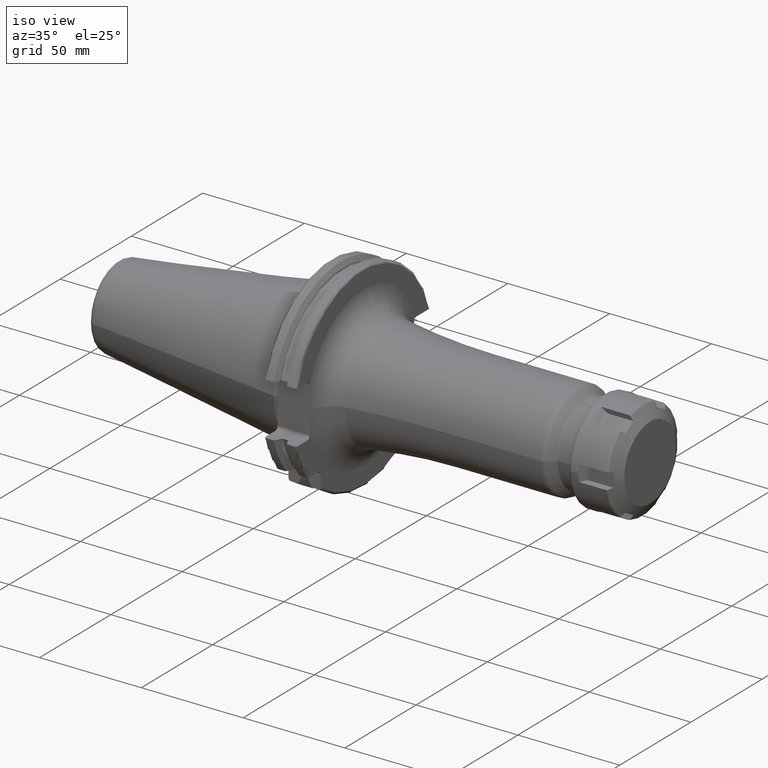
[diagram: clean part render]
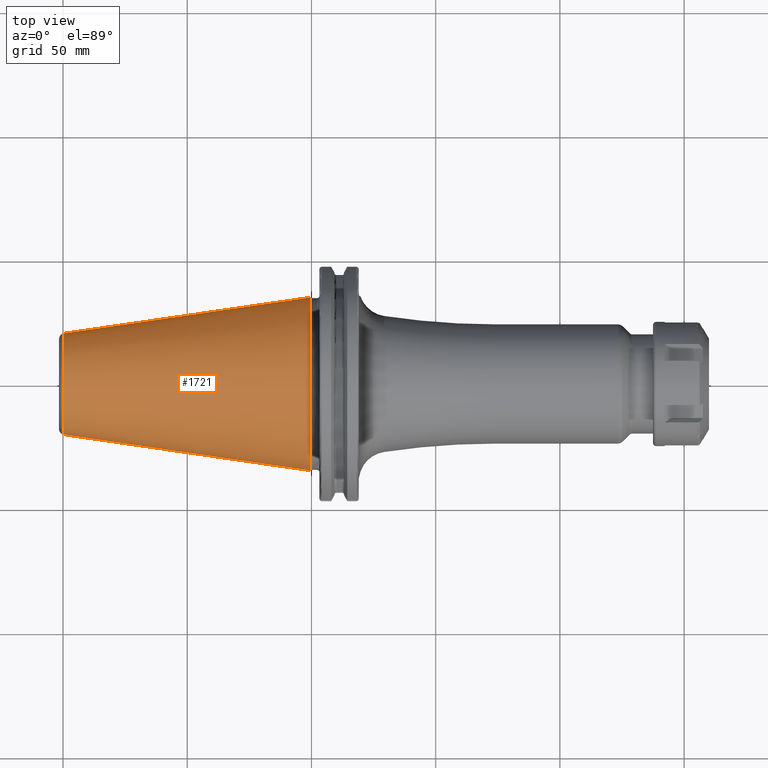
[diagram: tour spotlight — one face highlighted and labeled with its STEP entity id]
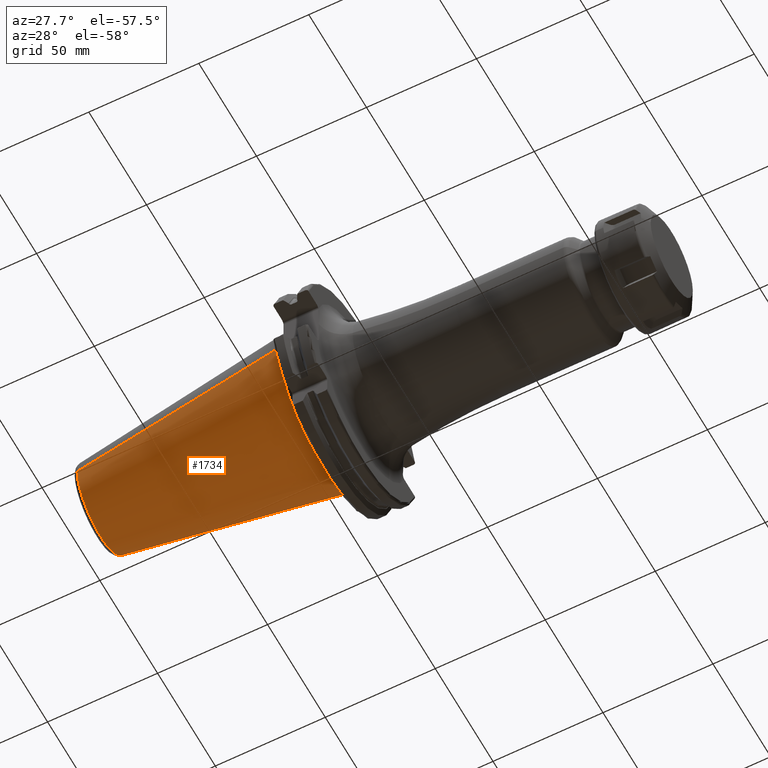
[diagram: tour spotlight — one face highlighted and labeled with its STEP entity id]
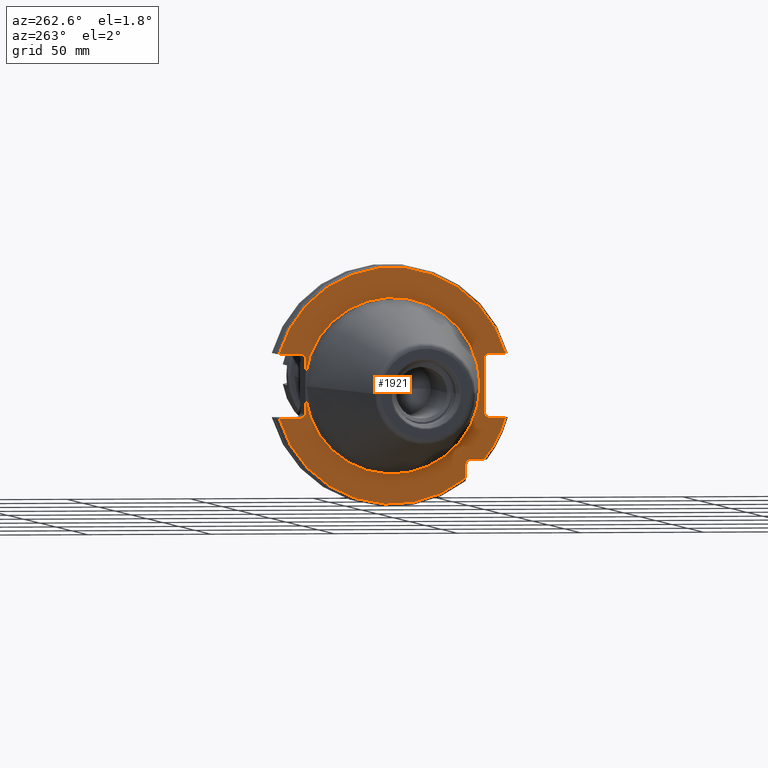
[diagram: tour spotlight — one face highlighted and labeled with its STEP entity id]
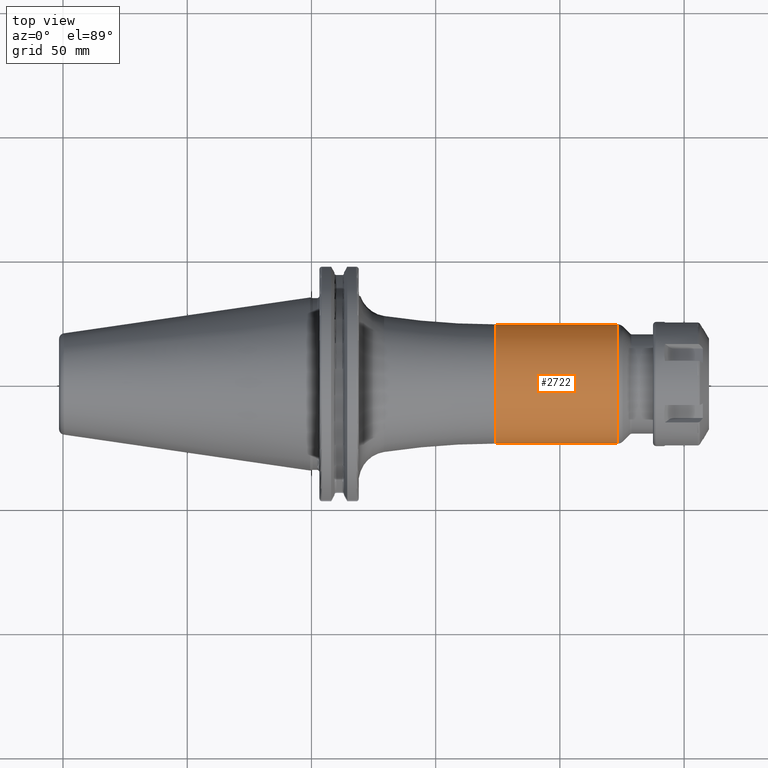
[diagram: tour spotlight — one face highlighted and labeled with its STEP entity id]
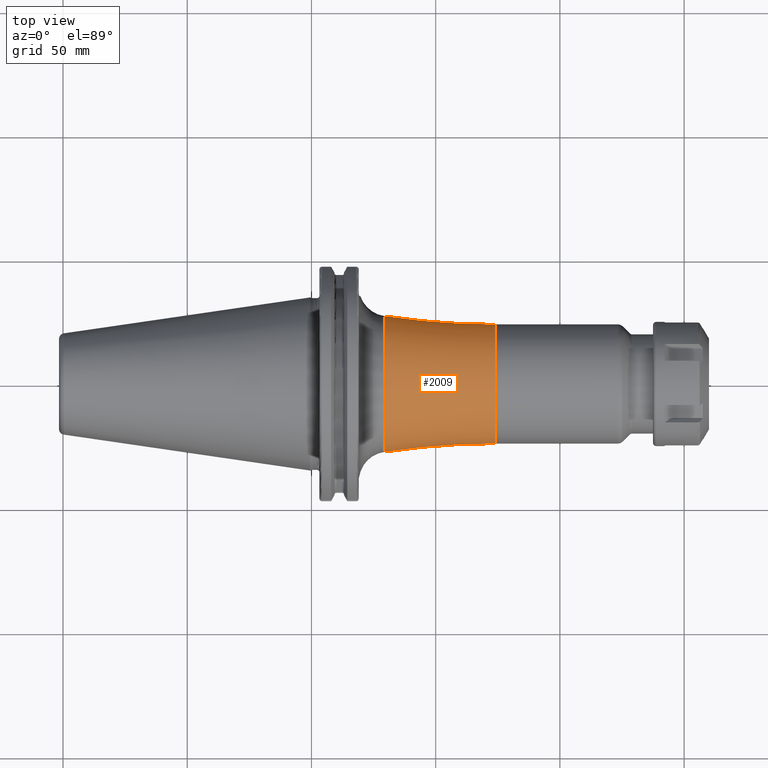
[diagram: tour spotlight — one face highlighted and labeled with its STEP entity id]
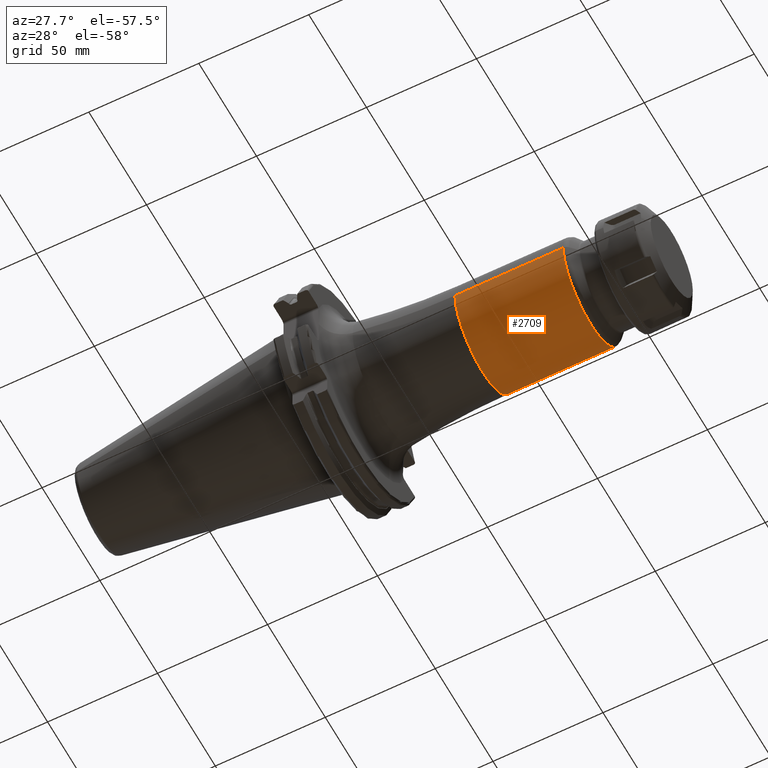
[diagram: tour spotlight — one face highlighted and labeled with its STEP entity id]
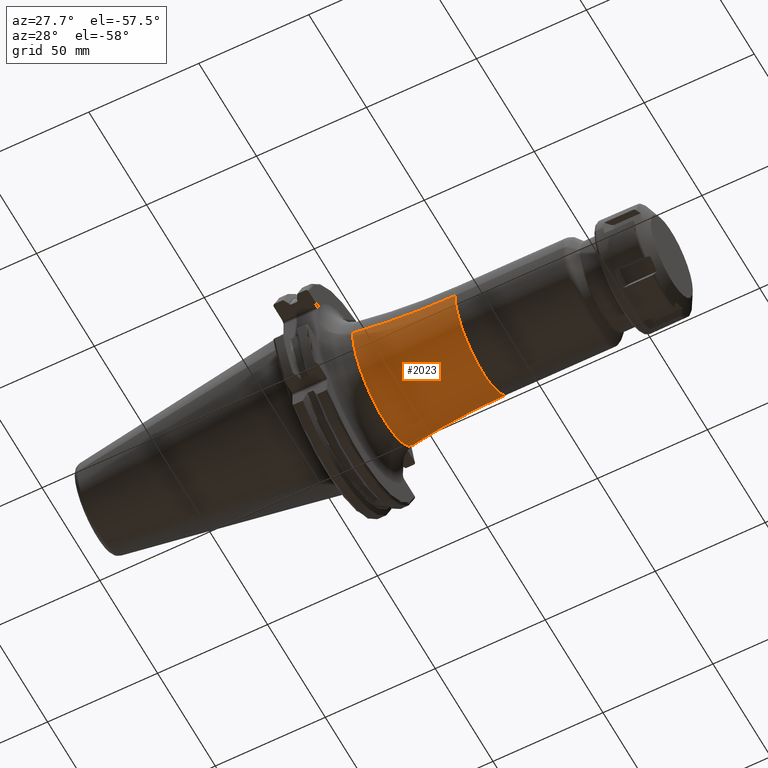
[diagram: tour spotlight — one face highlighted and labeled with its STEP entity id]
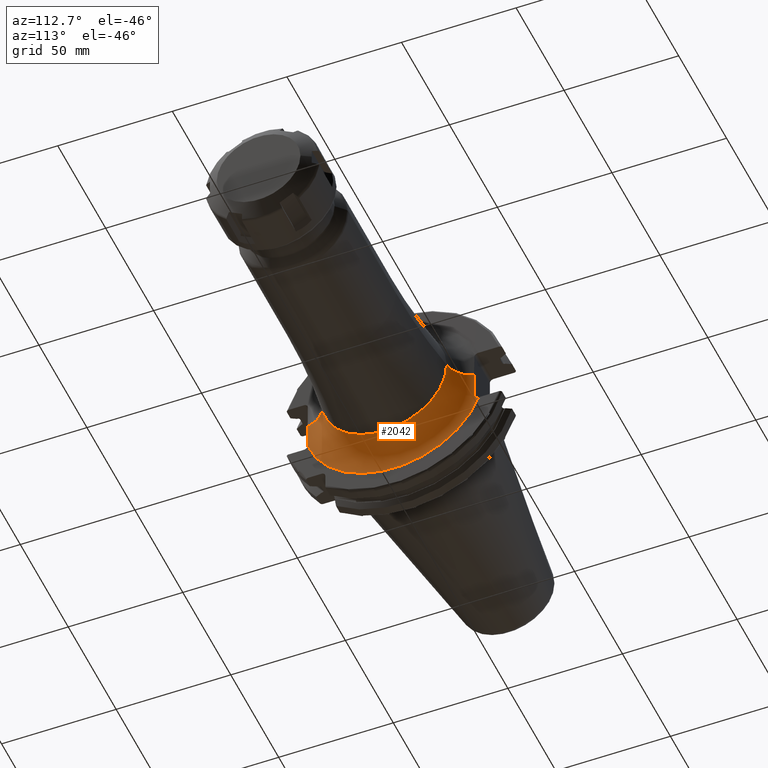
[diagram: tour spotlight — one face highlighted and labeled with its STEP entity id]
A machine part: a face-by-face anatomy tour. The part has 150 B-rep faces; the first image is the clean iso view, then the 8 largest visible faces are spotlighted one at a time (largest first), each with its STEP entity span.

Face 1 — top view, entity #1721. In plain terms, the highlighted conical surface has half-angle 8.298 deg.
Definition (entity closure, byte-faithful):
#37=CARTESIAN_POINT('',(-9.967471700563E1,0.E0,0.E0));
#38=DIRECTION('',(1.E0,0.E0,0.E0));
#39=DIRECTION('',(0.E0,1.E0,0.E0));
#40=AXIS2_PLACEMENT_3D('',#37,#38,#39);
#42=CARTESIAN_POINT('',(-4.896823332305E-1,0.E0,0.E0));
#43=DIRECTION('',(1.E0,0.E0,0.E0));
#44=DIRECTION('',(0.E0,1.E0,0.E0));
#45=AXIS2_PLACEMENT_3D('',#42,#43,#44);
#47=DIRECTION('',(-9.895312636440E-1,-1.443186691705E-1,0.E0));
#48=VECTOR('',#47,1.002343617797E2);
#49=CARTESIAN_POINT('',(-4.896823332305E-1,3.485358204157E1,0.E0));
#50=LINE('',#49,#48);
#51=DIRECTION('',(-9.895312636440E-1,1.443186691705E-1,0.E0));
#52=VECTOR('',#51,1.002343617797E2);
#53=CARTESIAN_POINT('',(-4.896823332305E-1,-3.485358204157E1,0.E0));
#54=LINE('',#53,#52);
#1388=CARTESIAN_POINT('',(-9.967471700563E1,2.038789234437E1,0.E0));
#1390=VERTEX_POINT('',#1388);
#1392=CARTESIAN_POINT('',(-9.967471700563E1,-2.038789234437E1,0.E0));
#1394=VERTEX_POINT('',#1392);
#1456=CARTESIAN_POINT('',(-4.896823332305E-1,3.485358204157E1,0.E0));
#1457=VERTEX_POINT('',#1456);
#1458=CARTESIAN_POINT('',(-4.896823332305E-1,-3.485358204157E1,0.E0));
#1459=VERTEX_POINT('',#1458);
#1707=CARTESIAN_POINT('',(-5.008219966943E1,0.E0,0.E0));
#1708=DIRECTION('',(1.E0,0.E0,0.E0));
#1709=DIRECTION('',(0.E0,-1.E0,0.E0));
#1710=AXIS2_PLACEMENT_3D('',#1707,#1708,#1709);
#1711=CONICAL_SURFACE('',#1710,2.762073719297E1,8.297826828206E0);
#1713=ORIENTED_EDGE('',*,*,#1712,.F.);
#1715=ORIENTED_EDGE('',*,*,#1714,.T.);
#1717=ORIENTED_EDGE('',*,*,#1716,.T.);
#1718=ORIENTED_EDGE('',*,*,#1700,.F.);
#1719=EDGE_LOOP('',(#1713,#1715,#1717,#1718));
#1720=FACE_OUTER_BOUND('',#1719,.F.);
#1721=ADVANCED_FACE('',(#1720),#1711,.T.);
#41=CIRCLE('',#40,2.038789234437E1);
#46=CIRCLE('',#45,3.485358204157E1);
#1700=EDGE_CURVE('',#1390,#1394,#41,.T.);
#1712=EDGE_CURVE('',#1457,#1390,#50,.T.);
#1714=EDGE_CURVE('',#1457,#1459,#46,.T.);
#1716=EDGE_CURVE('',#1459,#1394,#54,.T.);

Face 2 — auxiliary view, entity #1734. In plain terms, the highlighted conical surface has half-angle 8.298 deg.
Definition (entity closure, byte-faithful):
#32=CARTESIAN_POINT('',(-9.967471700563E1,0.E0,0.E0));
#33=DIRECTION('',(-1.E0,0.E0,0.E0));
#34=DIRECTION('',(0.E0,1.E0,0.E0));
#35=AXIS2_PLACEMENT_3D('',#32,#33,#34);
#47=DIRECTION('',(-9.895312636440E-1,-1.443186691705E-1,0.E0));
#48=VECTOR('',#47,1.002343617797E2);
#49=CARTESIAN_POINT('',(-4.896823332305E-1,3.485358204157E1,0.E0));
#50=LINE('',#49,#48);
#51=DIRECTION('',(-9.895312636440E-1,1.443186691705E-1,0.E0));
#52=VECTOR('',#51,1.002343617797E2);
#53=CARTESIAN_POINT('',(-4.896823332305E-1,-3.485358204157E1,0.E0));
#54=LINE('',#53,#52);
#55=CARTESIAN_POINT('',(-4.896823332305E-1,0.E0,0.E0));
#56=DIRECTION('',(-1.E0,0.E0,0.E0));
#57=DIRECTION('',(0.E0,1.E0,0.E0));
#58=AXIS2_PLACEMENT_3D('',#55,#56,#57);
#1388=CARTESIAN_POINT('',(-9.967471700563E1,2.038789234437E1,0.E0));
#1390=VERTEX_POINT('',#1388);
#1392=CARTESIAN_POINT('',(-9.967471700563E1,-2.038789234437E1,0.E0));
#1394=VERTEX_POINT('',#1392);
#1456=CARTESIAN_POINT('',(-4.896823332305E-1,3.485358204157E1,0.E0));
#1457=VERTEX_POINT('',#1456);
#1458=CARTESIAN_POINT('',(-4.896823332305E-1,-3.485358204157E1,0.E0));
#1459=VERTEX_POINT('',#1458);
#1722=CARTESIAN_POINT('',(-5.008219966943E1,0.E0,0.E0));
#1723=DIRECTION('',(1.E0,0.E0,0.E0));
#1724=DIRECTION('',(0.E0,-1.E0,0.E0));
#1725=AXIS2_PLACEMENT_3D('',#1722,#1723,#1724);
#1726=CONICAL_SURFACE('',#1725,2.762073719297E1,8.297826828206E0);
#1727=ORIENTED_EDGE('',*,*,#1712,.T.);
#1728=ORIENTED_EDGE('',*,*,#1689,.T.);
#1729=ORIENTED_EDGE('',*,*,#1716,.F.);
#1731=ORIENTED_EDGE('',*,*,#1730,.F.);
#1732=EDGE_LOOP('',(#1727,#1728,#1729,#1731));
#1733=FACE_OUTER_BOUND('',#1732,.F.);
#1734=ADVANCED_FACE('',(#1733),#1726,.T.);
#36=CIRCLE('',#35,2.038789234437E1);
#59=CIRCLE('',#58,3.485358204157E1);
#1689=EDGE_CURVE('',#1390,#1394,#36,.T.);
#1712=EDGE_CURVE('',#1457,#1390,#50,.T.);
#1716=EDGE_CURVE('',#1459,#1394,#54,.T.);
#1730=EDGE_CURVE('',#1457,#1459,#59,.T.);

Face 3 — auxiliary view, entity #1921. In plain terms, the highlighted planar face has unit normal (1, 0, 0).
Definition (entity closure, byte-faithful):
#105=CARTESIAN_POINT('',(3.2E0,3.53E1,-4.414818795828E0));
#117=CARTESIAN_POINT('',(3.2E0,0.E0,0.E0));
#118=DIRECTION('',(-1.E0,0.E0,0.E0));
#119=DIRECTION('',(0.E0,9.922698524245E-1,-1.240989120402E-1));
#120=AXIS2_PLACEMENT_3D('',#117,#118,#119);
#126=CARTESIAN_POINT('',(3.2E0,3.705E1,-1.115E1));
#127=DIRECTION('',(1.E0,0.E0,0.E0));
#128=DIRECTION('',(0.E0,-1.E0,0.E0));
#129=AXIS2_PLACEMENT_3D('',#126,#127,#128);
#135=DIRECTION('',(0.E0,1.E0,0.E0));
#136=VECTOR('',#135,6.711493733886E0);
#137=CARTESIAN_POINT('',(3.2E0,-4.596149373389E1,1.29E1));
#138=LINE('',#137,#136);
#139=DIRECTION('',(0.E0,0.E0,1.E0));
#140=VECTOR('',#139,2.23E1);
#141=CARTESIAN_POINT('',(3.2E0,-3.75E1,-1.115E1));
#142=LINE('',#141,#140);
#143=DIRECTION('',(0.E0,1.E0,0.E0));
#144=VECTOR('',#143,6.711493733886E0);
#145=CARTESIAN_POINT('',(3.2E0,-4.596149373389E1,-1.29E1));
#146=LINE('',#145,#144);
#147=CARTESIAN_POINT('',(3.2E0,0.E0,0.E0));
#148=DIRECTION('',(-1.E0,0.E0,0.E0));
#149=DIRECTION('',(0.E0,-7.803888060170E-1,-6.252945797329E-1));
#150=AXIS2_PLACEMENT_3D('',#147,#148,#149);
#152=DIRECTION('',(0.E0,-1.E0,0.E0));
#153=VECTOR('',#152,5.653810627237E0);
#154=CARTESIAN_POINT('',(3.2E0,-3.16E1,-2.985E1));
#155=LINE('',#154,#153);
#156=DIRECTION('',(0.E0,0.E0,1.E0));
#157=VECTOR('',#156,5.653810627237E0);
#158=CARTESIAN_POINT('',(3.2E0,-2.985E1,-3.725381062724E1));
#159=LINE('',#158,#157);
#160=CARTESIAN_POINT('',(3.2E0,0.E0,0.E0));
#161=DIRECTION('',(-1.E0,0.E0,0.E0));
#162=DIRECTION('',(0.E0,9.627964123359E-1,-2.702278083268E-1));
#163=AXIS2_PLACEMENT_3D('',#160,#161,#162);
#165=DIRECTION('',(0.E0,-1.E0,0.E0));
#166=VECTOR('',#165,8.911493733886E0);
#167=CARTESIAN_POINT('',(3.2E0,4.596149373389E1,-1.29E1));
#168=LINE('',#167,#166);
#169=DIRECTION('',(0.E0,0.E0,-1.E0));
#170=VECTOR('',#169,6.735181204172E0);
#171=CARTESIAN_POINT('',(3.2E0,3.53E1,-4.414818795828E0));
#172=LINE('',#171,#170);
#173=DIRECTION('',(0.E0,0.E0,-1.E0));
#174=VECTOR('',#173,6.735181204172E0);
#175=CARTESIAN_POINT('',(3.2E0,3.53E1,1.115E1));
#176=LINE('',#175,#174);
#177=DIRECTION('',(0.E0,-1.E0,0.E0));
#178=VECTOR('',#177,8.911493733886E0);
#179=CARTESIAN_POINT('',(3.2E0,4.596149373389E1,1.29E1));
#180=LINE('',#179,#178);
#181=CARTESIAN_POINT('',(3.2E0,0.E0,0.E0));
#182=DIRECTION('',(1.E0,0.E0,0.E0));
#183=DIRECTION('',(0.E0,9.627964123359E-1,2.702278083268E-1));
#184=AXIS2_PLACEMENT_3D('',#181,#182,#183);
#196=CARTESIAN_POINT('',(3.2E0,-3.925E1,1.115E1));
#197=DIRECTION('',(1.E0,0.E0,0.E0));
#198=DIRECTION('',(0.E0,1.E0,0.E0));
#199=AXIS2_PLACEMENT_3D('',#196,#197,#198);
#441=CARTESIAN_POINT('',(3.2E0,4.596149373389E1,-1.29E1));
#476=CARTESIAN_POINT('',(3.2E0,-4.596149373389E1,-1.29E1));
#483=CARTESIAN_POINT('',(3.2E0,-3.725381062724E1,-2.985E1));
#503=CARTESIAN_POINT('',(3.2E0,-3.16E1,-3.16E1));
#504=DIRECTION('',(1.E0,0.E0,0.E0));
#505=DIRECTION('',(0.E0,1.E0,0.E0));
#506=AXIS2_PLACEMENT_3D('',#503,#504,#505);
#587=CARTESIAN_POINT('',(3.2E0,3.705E1,1.115E1));
#588=DIRECTION('',(1.E0,0.E0,0.E0));
#589=DIRECTION('',(0.E0,0.E0,1.E0));
#590=AXIS2_PLACEMENT_3D('',#587,#588,#589);
#673=CARTESIAN_POINT('',(3.2E0,4.596149373389E1,1.29E1));
#680=CARTESIAN_POINT('',(3.2E0,-4.596149373389E1,1.29E1));
#965=CARTESIAN_POINT('',(3.2E0,-3.925E1,-1.115E1));
#966=DIRECTION('',(1.E0,0.E0,0.E0));
#967=DIRECTION('',(0.E0,0.E0,-1.E0));
#968=AXIS2_PLACEMENT_3D('',#965,#966,#967);
#1166=CARTESIAN_POINT('',(3.2E0,3.53E1,4.414818795828E0));
#1177=CARTESIAN_POINT('',(3.2E0,0.E0,0.E0));
#1178=DIRECTION('',(1.E0,0.E0,0.E0));
#1179=DIRECTION('',(0.E0,9.922698524245E-1,1.240989120402E-1));
#1180=AXIS2_PLACEMENT_3D('',#1177,#1178,#1179);
#1400=CARTESIAN_POINT('',(3.2E0,-3.5575E1,0.E0));
#1402=VERTEX_POINT('',#1400);
#1526=VERTEX_POINT('',#1166);
#1528=VERTEX_POINT('',#105);
#1531=VERTEX_POINT('',#673);
#1532=VERTEX_POINT('',#680);
#1535=VERTEX_POINT('',#441);
#1536=VERTEX_POINT('',#476);
#1559=CARTESIAN_POINT('',(3.2E0,-2.985E1,-3.725381062724E1));
#1560=VERTEX_POINT('',#1559);
#1562=CARTESIAN_POINT('',(3.2E0,-3.925E1,-1.29E1));
#1564=VERTEX_POINT('',#1562);
#1566=CARTESIAN_POINT('',(3.2E0,-3.925E1,1.29E1));
#1568=VERTEX_POINT('',#1566);
#1569=CARTESIAN_POINT('',(3.2E0,3.705E1,1.29E1));
#1570=VERTEX_POINT('',#1569);
#1571=CARTESIAN_POINT('',(3.2E0,3.53E1,1.115E1));
#1572=VERTEX_POINT('',#1571);
#1573=CARTESIAN_POINT('',(3.2E0,3.53E1,-1.115E1));
#1574=VERTEX_POINT('',#1573);
#1575=CARTESIAN_POINT('',(3.2E0,3.705E1,-1.29E1));
#1576=VERTEX_POINT('',#1575);
#1577=CARTESIAN_POINT('',(3.2E0,-3.75E1,-1.115E1));
#1578=CARTESIAN_POINT('',(3.2E0,-3.75E1,1.115E1));
#1579=VERTEX_POINT('',#1577);
#1580=VERTEX_POINT('',#1578);
#1585=CARTESIAN_POINT('',(3.2E0,-2.985E1,-3.16E1));
#1586=CARTESIAN_POINT('',(3.2E0,-3.16E1,-2.985E1));
#1587=VERTEX_POINT('',#1585);
#1588=VERTEX_POINT('',#1586);
#1660=VERTEX_POINT('',#483);
#1881=CARTESIAN_POINT('',(3.2E0,0.E0,0.E0));
#1882=DIRECTION('',(1.E0,0.E0,0.E0));
#1883=DIRECTION('',(0.E0,-1.E0,0.E0));
#1884=AXIS2_PLACEMENT_3D('',#1881,#1882,#1883);
#1885=PLANE('',#1884);
#1887=ORIENTED_EDGE('',*,*,#1886,.T.);
#1889=ORIENTED_EDGE('',*,*,#1888,.F.);
#1891=ORIENTED_EDGE('',*,*,#1890,.F.);
#1893=ORIENTED_EDGE('',*,*,#1892,.F.);
#1895=ORIENTED_EDGE('',*,*,#1894,.F.);
#1897=ORIENTED_EDGE('',*,*,#1896,.F.);
#1899=ORIENTED_EDGE('',*,*,#1898,.F.);
#1901=ORIENTED_EDGE('',*,*,#1900,.F.);
#1903=ORIENTED_EDGE('',*,*,#1902,.F.);
#1905=ORIENTED_EDGE('',*,*,#1904,.F.);
#1906=ORIENTED_EDGE('',*,*,#1852,.T.);
#1907=ORIENTED_EDGE('',*,*,#1841,.F.);
#1908=ORIENTED_EDGE('',*,*,#1826,.F.);
#1909=ORIENTED_EDGE('',*,*,#1803,.T.);
#1911=ORIENTED_EDGE('',*,*,#1910,.F.);
#1912=ORIENTED_EDGE('',*,*,#1821,.F.);
#1914=ORIENTED_EDGE('',*,*,#1913,.F.);
#1916=ORIENTED_EDGE('',*,*,#1915,.F.);
#1918=ORIENTED_EDGE('',*,*,#1917,.T.);
#1919=EDGE_LOOP('',(#1887,#1889,#1891,#1893,#1895,#1897,#1899,#1901,#1903,#1905,
#1906,#1907,#1908,#1909,#1911,#1912,#1914,#1916,#1918));
#1920=FACE_OUTER_BOUND('',#1919,.F.);
#1921=ADVANCED_FACE('',(#1920),#1885,.F.);
#121=CIRCLE('',#120,3.5575E1);
#130=CIRCLE('',#129,1.75E0);
#151=CIRCLE('',#150,4.77375E1);
#164=CIRCLE('',#163,4.77375E1);
#185=CIRCLE('',#184,4.77375E1);
#200=CIRCLE('',#199,1.75E0);
#507=CIRCLE('',#506,1.75E0);
#591=CIRCLE('',#590,1.75E0);
#969=CIRCLE('',#968,1.75E0);
#1181=CIRCLE('',#1180,3.5575E1);
#1803=EDGE_CURVE('',#1528,#1402,#121,.T.);
#1821=EDGE_CURVE('',#1572,#1526,#176,.T.);
#1826=EDGE_CURVE('',#1528,#1574,#172,.T.);
#1841=EDGE_CURVE('',#1574,#1576,#130,.T.);
#1852=EDGE_CURVE('',#1535,#1576,#168,.T.);
#1886=EDGE_CURVE('',#1532,#1568,#138,.T.);
#1888=EDGE_CURVE('',#1580,#1568,#200,.T.);
#1890=EDGE_CURVE('',#1579,#1580,#142,.T.);
#1892=EDGE_CURVE('',#1564,#1579,#969,.T.);
#1894=EDGE_CURVE('',#1536,#1564,#146,.T.);
#1896=EDGE_CURVE('',#1660,#1536,#151,.T.);
#1898=EDGE_CURVE('',#1588,#1660,#155,.T.);
#1900=EDGE_CURVE('',#1587,#1588,#507,.T.);
#1902=EDGE_CURVE('',#1560,#1587,#159,.T.);
#1904=EDGE_CURVE('',#1535,#1560,#164,.T.);
#1910=EDGE_CURVE('',#1526,#1402,#1181,.T.);
#1913=EDGE_CURVE('',#1570,#1572,#591,.T.);
#1915=EDGE_CURVE('',#1531,#1570,#180,.T.);
#1917=EDGE_CURVE('',#1531,#1532,#185,.T.);

Face 4 — top view, entity #2722. In plain terms, the highlighted cylindrical surface (partial cylindrical patch) has radius 24 mm, axis along (1, 0, 0).
Definition (entity closure, byte-faithful):
#1021=DIRECTION('',(-1.E0,0.E0,-3.693530353521E-14));
#1022=VECTOR('',#1021,4.920735931288E1);
#1023=CARTESIAN_POINT('',(1.232573593129E2,-2.4E1,1.813620903687E-12));
#1024=LINE('',#1023,#1022);
#1030=DIRECTION('',(-1.E0,0.E0,3.693136289898E-14));
#1031=VECTOR('',#1030,4.920735931288E1);
#1032=CARTESIAN_POINT('',(1.232573593129E2,2.4E1,-1.814355691767E-12));
#1033=LINE('',#1032,#1031);
#1034=CARTESIAN_POINT('',(7.405E1,0.E0,0.E0));
#1035=DIRECTION('',(1.E0,0.E0,0.E0));
#1036=DIRECTION('',(0.E0,1.E0,0.E0));
#1037=AXIS2_PLACEMENT_3D('',#1034,#1035,#1036);
#1039=CARTESIAN_POINT('',(1.232573593129E2,0.E0,0.E0));
#1040=DIRECTION('',(-1.E0,0.E0,0.E0));
#1041=DIRECTION('',(0.E0,-1.E0,0.E0));
#1042=AXIS2_PLACEMENT_3D('',#1039,#1040,#1041);
#1613=CARTESIAN_POINT('',(1.232573593129E2,2.4E1,0.E0));
#1614=CARTESIAN_POINT('',(1.232573593129E2,-2.4E1,0.E0));
#1615=VERTEX_POINT('',#1613);
#1616=VERTEX_POINT('',#1614);
#1621=CARTESIAN_POINT('',(7.405E1,2.4E1,0.E0));
#1622=CARTESIAN_POINT('',(7.405E1,-2.4E1,0.E0));
#1623=VERTEX_POINT('',#1621);
#1624=VERTEX_POINT('',#1622);
#2710=CARTESIAN_POINT('',(1.26525E1,0.E0,0.E0));
#2711=DIRECTION('',(1.E0,0.E0,0.E0));
#2712=DIRECTION('',(0.E0,-1.E0,0.E0));
#2713=AXIS2_PLACEMENT_3D('',#2710,#2711,#2712);
#2714=CYLINDRICAL_SURFACE('',#2713,2.4E1);
#2715=ORIENTED_EDGE('',*,*,#2003,.F.);
#2716=ORIENTED_EDGE('',*,*,#2705,.F.);
#2718=ORIENTED_EDGE('',*,*,#2717,.F.);
#2719=ORIENTED_EDGE('',*,*,#2701,.T.);
#2720=EDGE_LOOP('',(#2715,#2716,#2718,#2719));
#2721=FACE_OUTER_BOUND('',#2720,.F.);
#2722=ADVANCED_FACE('',(#2721),#2714,.T.);
#1038=CIRCLE('',#1037,2.4E1);
#1043=CIRCLE('',#1042,2.4E1);
#2003=EDGE_CURVE('',#1623,#1624,#1038,.T.);
#2701=EDGE_CURVE('',#1616,#1624,#1024,.T.);
#2705=EDGE_CURVE('',#1615,#1623,#1033,.T.);
#2717=EDGE_CURVE('',#1616,#1615,#1043,.T.);

Face 5 — top view, entity #2009. In plain terms, the highlighted toroidal blend (fillet) surface has major radius 324 mm and minor (blend) radius 300 mm.
Definition (entity closure, byte-faithful):
#239=CARTESIAN_POINT('',(2.925833333333E1,0.E0,0.E0));
#240=DIRECTION('',(1.E0,0.E0,0.E0));
#241=DIRECTION('',(0.E0,1.E0,0.E0));
#242=AXIS2_PLACEMENT_3D('',#239,#240,#241);
#249=CARTESIAN_POINT('',(7.405E1,-3.24E2,-7.935711258475E-14));
#250=DIRECTION('',(0.E0,0.E0,1.E0));
#251=DIRECTION('',(0.E0,1.E0,0.E0));
#252=AXIS2_PLACEMENT_3D('',#249,#250,#251);
#254=CARTESIAN_POINT('',(7.405E1,3.24E2,3.967855629237E-14));
#255=DIRECTION('',(0.E0,0.E0,-1.E0));
#256=DIRECTION('',(0.E0,-1.E0,0.E0));
#257=AXIS2_PLACEMENT_3D('',#254,#255,#256);
#1034=CARTESIAN_POINT('',(7.405E1,0.E0,0.E0));
#1035=DIRECTION('',(1.E0,0.E0,0.E0));
#1036=DIRECTION('',(0.E0,1.E0,0.E0));
#1037=AXIS2_PLACEMENT_3D('',#1034,#1035,#1036);
#1621=CARTESIAN_POINT('',(7.405E1,2.4E1,0.E0));
#1622=CARTESIAN_POINT('',(7.405E1,-2.4E1,0.E0));
#1623=VERTEX_POINT('',#1621);
#1624=VERTEX_POINT('',#1622);
#1633=CARTESIAN_POINT('',(2.925833333333E1,-2.736266823405E1,0.E0));
#1634=CARTESIAN_POINT('',(2.925833333333E1,2.736266823405E1,0.E0));
#1635=VERTEX_POINT('',#1633);
#1636=VERTEX_POINT('',#1634);
#1995=CARTESIAN_POINT('',(7.405E1,0.E0,0.E0));
#1996=DIRECTION('',(1.E0,0.E0,0.E0));
#1997=DIRECTION('',(0.E0,-1.E0,0.E0));
#1998=AXIS2_PLACEMENT_3D('',#1995,#1996,#1997);
#1999=TOROIDAL_SURFACE('',#1998,3.24E2,3.E2);
#2000=ORIENTED_EDGE('',*,*,#1978,.F.);
#2002=ORIENTED_EDGE('',*,*,#2001,.F.);
#2004=ORIENTED_EDGE('',*,*,#2003,.T.);
#2006=ORIENTED_EDGE('',*,*,#2005,.T.);
#2007=EDGE_LOOP('',(#2000,#2002,#2004,#2006));
#2008=FACE_OUTER_BOUND('',#2007,.F.);
#2009=ADVANCED_FACE('',(#2008),#1999,.F.);
#243=CIRCLE('',#242,2.736266823405E1);
#253=CIRCLE('',#252,3.E2);
#258=CIRCLE('',#257,3.E2);
#1038=CIRCLE('',#1037,2.4E1);
#1978=EDGE_CURVE('',#1636,#1635,#243,.T.);
#2001=EDGE_CURVE('',#1623,#1636,#258,.T.);
#2003=EDGE_CURVE('',#1623,#1624,#1038,.T.);
#2005=EDGE_CURVE('',#1624,#1635,#253,.T.);

Face 6 — auxiliary view, entity #2709. In plain terms, the highlighted cylindrical surface (partial cylindrical patch) has radius 24 mm, axis along (1, 0, 0).
Definition (entity closure, byte-faithful):
#1016=CARTESIAN_POINT('',(7.405E1,0.E0,0.E0));
#1017=DIRECTION('',(1.E0,0.E0,0.E0));
#1018=DIRECTION('',(0.E0,-1.E0,0.E0));
#1019=AXIS2_PLACEMENT_3D('',#1016,#1017,#1018);
#1021=DIRECTION('',(-1.E0,0.E0,-3.693530353521E-14));
#1022=VECTOR('',#1021,4.920735931288E1);
#1023=CARTESIAN_POINT('',(1.232573593129E2,-2.4E1,1.813620903687E-12));
#1024=LINE('',#1023,#1022);
#1025=CARTESIAN_POINT('',(1.232573593129E2,0.E0,0.E0));
#1026=DIRECTION('',(-1.E0,0.E0,0.E0));
#1027=DIRECTION('',(0.E0,1.E0,0.E0));
#1028=AXIS2_PLACEMENT_3D('',#1025,#1026,#1027);
#1030=DIRECTION('',(-1.E0,0.E0,3.693136289898E-14));
#1031=VECTOR('',#1030,4.920735931288E1);
#1032=CARTESIAN_POINT('',(1.232573593129E2,2.4E1,-1.814355691767E-12));
#1033=LINE('',#1032,#1031);
#1613=CARTESIAN_POINT('',(1.232573593129E2,2.4E1,0.E0));
#1614=CARTESIAN_POINT('',(1.232573593129E2,-2.4E1,0.E0));
#1615=VERTEX_POINT('',#1613);
#1616=VERTEX_POINT('',#1614);
#1621=CARTESIAN_POINT('',(7.405E1,2.4E1,0.E0));
#1622=CARTESIAN_POINT('',(7.405E1,-2.4E1,0.E0));
#1623=VERTEX_POINT('',#1621);
#1624=VERTEX_POINT('',#1622);
#2695=CARTESIAN_POINT('',(1.26525E1,0.E0,0.E0));
#2696=DIRECTION('',(1.E0,0.E0,0.E0));
#2697=DIRECTION('',(0.E0,-1.E0,0.E0));
#2698=AXIS2_PLACEMENT_3D('',#2695,#2696,#2697);
#2699=CYLINDRICAL_SURFACE('',#2698,2.4E1);
#2700=ORIENTED_EDGE('',*,*,#2018,.F.);
#2702=ORIENTED_EDGE('',*,*,#2701,.F.);
#2704=ORIENTED_EDGE('',*,*,#2703,.F.);
#2706=ORIENTED_EDGE('',*,*,#2705,.T.);
#2707=EDGE_LOOP('',(#2700,#2702,#2704,#2706));
#2708=FACE_OUTER_BOUND('',#2707,.F.);
#2709=ADVANCED_FACE('',(#2708),#2699,.T.);
#1020=CIRCLE('',#1019,2.4E1);
#1029=CIRCLE('',#1028,2.4E1);
#2018=EDGE_CURVE('',#1624,#1623,#1020,.T.);
#2701=EDGE_CURVE('',#1616,#1624,#1024,.T.);
#2703=EDGE_CURVE('',#1615,#1616,#1029,.T.);
#2705=EDGE_CURVE('',#1615,#1623,#1033,.T.);

Face 7 — auxiliary view, entity #2023. In plain terms, the highlighted toroidal blend (fillet) surface has major radius 324 mm and minor (blend) radius 300 mm.
Definition (entity closure, byte-faithful):
#244=CARTESIAN_POINT('',(2.925833333333E1,0.E0,0.E0));
#245=DIRECTION('',(1.E0,0.E0,0.E0));
#246=DIRECTION('',(0.E0,-1.E0,0.E0));
#247=AXIS2_PLACEMENT_3D('',#244,#245,#246);
#249=CARTESIAN_POINT('',(7.405E1,-3.24E2,-7.935711258475E-14));
#250=DIRECTION('',(0.E0,0.E0,1.E0));
#251=DIRECTION('',(0.E0,1.E0,0.E0));
#252=AXIS2_PLACEMENT_3D('',#249,#250,#251);
#254=CARTESIAN_POINT('',(7.405E1,3.24E2,3.967855629237E-14));
#255=DIRECTION('',(0.E0,0.E0,-1.E0));
#256=DIRECTION('',(0.E0,-1.E0,0.E0));
#257=AXIS2_PLACEMENT_3D('',#254,#255,#256);
#1016=CARTESIAN_POINT('',(7.405E1,0.E0,0.E0));
#1017=DIRECTION('',(1.E0,0.E0,0.E0));
#1018=DIRECTION('',(0.E0,-1.E0,0.E0));
#1019=AXIS2_PLACEMENT_3D('',#1016,#1017,#1018);
#1621=CARTESIAN_POINT('',(7.405E1,2.4E1,0.E0));
#1622=CARTESIAN_POINT('',(7.405E1,-2.4E1,0.E0));
#1623=VERTEX_POINT('',#1621);
#1624=VERTEX_POINT('',#1622);
#1633=CARTESIAN_POINT('',(2.925833333333E1,-2.736266823405E1,0.E0));
#1634=CARTESIAN_POINT('',(2.925833333333E1,2.736266823405E1,0.E0));
#1635=VERTEX_POINT('',#1633);
#1636=VERTEX_POINT('',#1634);
#2010=CARTESIAN_POINT('',(7.405E1,0.E0,0.E0));
#2011=DIRECTION('',(1.E0,0.E0,0.E0));
#2012=DIRECTION('',(0.E0,-1.E0,0.E0));
#2013=AXIS2_PLACEMENT_3D('',#2010,#2011,#2012);
#2014=TOROIDAL_SURFACE('',#2013,3.24E2,3.E2);
#2016=ORIENTED_EDGE('',*,*,#2015,.F.);
#2017=ORIENTED_EDGE('',*,*,#2005,.F.);
#2019=ORIENTED_EDGE('',*,*,#2018,.T.);
#2020=ORIENTED_EDGE('',*,*,#2001,.T.);
#2021=EDGE_LOOP('',(#2016,#2017,#2019,#2020));
#2022=FACE_OUTER_BOUND('',#2021,.F.);
#2023=ADVANCED_FACE('',(#2022),#2014,.F.);
#248=CIRCLE('',#247,2.736266823405E1);
#253=CIRCLE('',#252,3.E2);
#258=CIRCLE('',#257,3.E2);
#1020=CIRCLE('',#1019,2.4E1);
#2001=EDGE_CURVE('',#1623,#1636,#258,.T.);
#2005=EDGE_CURVE('',#1624,#1635,#253,.T.);
#2015=EDGE_CURVE('',#1635,#1636,#248,.T.);
#2018=EDGE_CURVE('',#1624,#1623,#1020,.T.);

Face 8 — auxiliary view, entity #2042. In plain terms, the highlighted toroidal blend (fillet) surface has major radius 39.2282 mm and minor (blend) radius 12 mm.
Definition (entity closure, byte-faithful):
#212=CARTESIAN_POINT('',(1.917509122110E1,-3.75E1,3.879478832741E-3));
#226=CARTESIAN_POINT('',(1.971114870539E1,3.53E1,-3.657105286902E-3));
#234=CARTESIAN_POINT('',(3.105E1,3.922816129417E1,-4.064065610877E-3));
#235=DIRECTION('',(0.E0,1.036007157866E-4,9.999999946334E-1));
#236=DIRECTION('',(-9.449042745512E-1,-3.273467745140E-1,3.391336033207E-5));
#237=AXIS2_PLACEMENT_3D('',#234,#235,#236);
#244=CARTESIAN_POINT('',(2.925833333333E1,0.E0,0.E0));
#245=DIRECTION('',(1.E0,0.E0,0.E0));
#246=DIRECTION('',(0.E0,-1.E0,0.E0));
#247=AXIS2_PLACEMENT_3D('',#244,#245,#246);
#259=CARTESIAN_POINT('',(1.917509122110E1,-3.75E1,3.879478832741E-3));
#260=CARTESIAN_POINT('',(1.917510521630E1,-3.75E1,-9.256925992130E-1));
#261=CARTESIAN_POINT('',(1.916474772933E1,-3.75E1,-2.785619568722E0));
#262=CARTESIAN_POINT('',(1.912379283916E1,-3.75E1,-5.576799437203E0));
#263=CARTESIAN_POINT('',(1.907411858053E1,-3.75E1,-8.372462470745E0));
#264=CARTESIAN_POINT('',(1.905278507759E1,-3.75E1,-1.022519509877E1));
#265=CARTESIAN_POINT('',(1.905046490982E1,-3.75E1,-1.115E1));
#267=CARTESIAN_POINT('',(3.105E1,-3.922816129477E1,4.058261903742E-3));
#268=DIRECTION('',(0.E0,-1.034527683194E-4,-9.999999946488E-1));
#269=DIRECTION('',(-9.895757315754E-1,1.440134412307E-1,-1.489858925025E-5));
#270=AXIS2_PLACEMENT_3D('',#267,#268,#269);
#272=CARTESIAN_POINT('',(1.925508703752E1,3.53E1,-1.115E1));
#273=CARTESIAN_POINT('',(1.930884565943E1,3.53E1,-1.019702284508E1));
#274=CARTESIAN_POINT('',(1.942450763395E1,3.53E1,-8.305086475751E0));
#275=CARTESIAN_POINT('',(1.958031027876E1,3.53E1,-5.502395477557E0));
#276=CARTESIAN_POINT('',(1.968608939994E1,3.53E1,-2.746117629860E0));
#277=CARTESIAN_POINT('',(1.971111598425E1,3.53E1,-9.153431382360E-1));
#278=CARTESIAN_POINT('',(1.971114870539E1,3.53E1,-3.657105286902E-3));
#280=CARTESIAN_POINT('',(1.904998791807E1,3.704822074995E1,-1.289998995009E1));
#281=CARTESIAN_POINT('',(1.904998791807E1,3.693092497773E1,-1.289998995009E1));
#282=CARTESIAN_POINT('',(1.905303538707E1,3.670038291842E1,-1.287614954216E1));
#283=CARTESIAN_POINT('',(1.906754964238E1,3.637100826055E1,-1.277515529011E1));
#284=CARTESIAN_POINT('',(1.909195980596E1,3.606549144261E1,-1.261068252090E1));
#285=CARTESIAN_POINT('',(1.912457814982E1,3.579728795394E1,-1.238821453582E1));
#286=CARTESIAN_POINT('',(1.916174960831E1,3.557921789427E1,-1.211932942219E1));
#287=CARTESIAN_POINT('',(1.919962341881E1,3.541750717922E1,-1.181082746990E1));
#288=CARTESIAN_POINT('',(1.923234016954E1,3.532169978468E1,-1.148647654446E1));
#289=CARTESIAN_POINT('',(1.924877707746E1,3.53E1,-1.126185643470E1));
#290=CARTESIAN_POINT('',(1.925508703752E1,3.53E1,-1.115E1));
#292=CARTESIAN_POINT('',(1.905E1,0.E0,0.E0));
#293=DIRECTION('',(1.E0,0.E0,0.E0));
#294=DIRECTION('',(0.E0,-9.565519620833E-1,-2.915619039495E-1));
#295=AXIS2_PLACEMENT_3D('',#292,#293,#294);
#954=CARTESIAN_POINT('',(1.905046490982E1,-3.75E1,-1.115E1));
#955=CARTESIAN_POINT('',(1.905034426854E1,-3.75E1,-1.119808688639E1));
#956=CARTESIAN_POINT('',(1.905011408708E1,-3.750396018188E1,-1.129432689300E1));
#957=CARTESIAN_POINT('',(1.905E1,-3.751587015373E1,-1.138988854655E1));
#958=CARTESIAN_POINT('',(1.905E1,-3.752378207309E1,-1.143740156331E1));
#1625=VERTEX_POINT('',#226);
#1627=VERTEX_POINT('',#272);
#1628=CARTESIAN_POINT('',(1.905E1,-3.752377485623E1,-1.143743745675E1));
#1629=CARTESIAN_POINT('',(1.905E1,3.704643815871E1,-1.290000289886E1));
#1630=VERTEX_POINT('',#1628);
#1631=VERTEX_POINT('',#1629);
#1632=VERTEX_POINT('',#954);
#1633=CARTESIAN_POINT('',(2.925833333333E1,-2.736266823405E1,0.E0));
#1634=CARTESIAN_POINT('',(2.925833333333E1,2.736266823405E1,0.E0));
#1635=VERTEX_POINT('',#1633);
#1636=VERTEX_POINT('',#1634);
#1641=VERTEX_POINT('',#212);
#2024=CARTESIAN_POINT('',(3.105E1,0.E0,0.E0));
#2025=DIRECTION('',(1.E0,0.E0,0.E0));
#2026=DIRECTION('',(0.E0,-1.485959642860E-3,9.999988959614E-1));
#2027=AXIS2_PLACEMENT_3D('',#2024,#2025,#2026);
#2028=TOROIDAL_SURFACE('',#2027,3.922816150469E1,1.2E1);
#2030=ORIENTED_EDGE('',*,*,#2029,.F.);
#2032=ORIENTED_EDGE('',*,*,#2031,.F.);
#2034=ORIENTED_EDGE('',*,*,#2033,.F.);
#2035=ORIENTED_EDGE('',*,*,#1980,.T.);
#2036=ORIENTED_EDGE('',*,*,#2015,.T.);
#2037=ORIENTED_EDGE('',*,*,#1990,.F.);
#2038=ORIENTED_EDGE('',*,*,#1815,.F.);
#2039=ORIENTED_EDGE('',*,*,#1838,.F.);
#2040=EDGE_LOOP('',(#2030,#2032,#2034,#2035,#2036,#2037,#2038,#2039));
#2041=FACE_OUTER_BOUND('',#2040,.F.);
#2042=ADVANCED_FACE('',(#2041),#2028,.F.);
#238=CIRCLE('',#237,1.2E1);
#248=CIRCLE('',#247,2.736266823405E1);
#266=B_SPLINE_CURVE_WITH_KNOTS('',3,(#259,#260,#261,#262,#263,#264,#265),
.UNSPECIFIED.,.F.,.F.,(4,1,1,1,4),(0.E0,2.5E-1,5.E-1,7.5E-1,1.E0),
.UNSPECIFIED.);
#271=CIRCLE('',#270,1.2E1);
#279=B_SPLINE_CURVE_WITH_KNOTS('',3,(#272,#273,#274,#275,#276,#277,#278),
.UNSPECIFIED.,.F.,.F.,(4,1,1,1,4),(0.E0,2.5E-1,5.E-1,7.5E-1,1.E0),
.UNSPECIFIED.);
#291=B_SPLINE_CURVE_WITH_KNOTS('',3,(#280,#281,#282,#283,#284,#285,#286,#287,
#288,#289,#290),.UNSPECIFIED.,.F.,.F.,(4,1,1,1,1,1,1,1,4),(0.E0,1.25E-1,2.5E-1,
3.75E-1,5.E-1,6.25E-1,7.5E-1,8.75E-1,1.E0),.UNSPECIFIED.);
#296=CIRCLE('',#295,3.922816150469E1);
#959=B_SPLINE_CURVE_WITH_KNOTS('',3,(#954,#955,#956,#957,#958),.UNSPECIFIED.,
.F.,.F.,(4,1,4),(0.E0,5.E-1,1.E0),.UNSPECIFIED.);
#1815=EDGE_CURVE('',#1627,#1625,#279,.T.);
#1838=EDGE_CURVE('',#1631,#1627,#291,.T.);
#1980=EDGE_CURVE('',#1641,#1635,#271,.T.);
#1990=EDGE_CURVE('',#1625,#1636,#238,.T.);
#2015=EDGE_CURVE('',#1635,#1636,#248,.T.);
#2029=EDGE_CURVE('',#1630,#1631,#296,.T.);
#2031=EDGE_CURVE('',#1632,#1630,#959,.T.);
#2033=EDGE_CURVE('',#1641,#1632,#266,.T.);